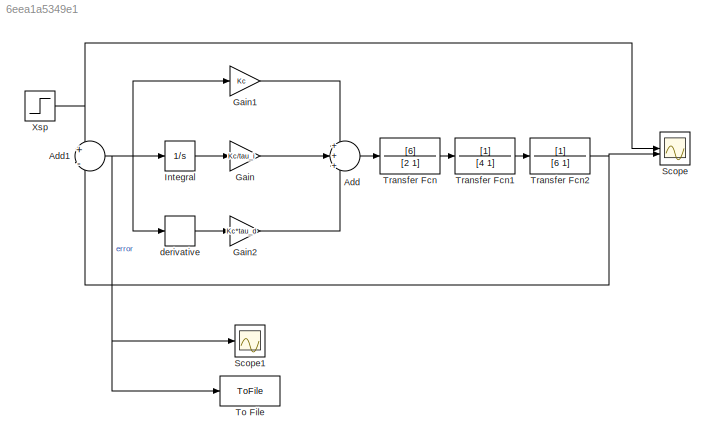
MODEL slx_6eea1a5349e1
KIND model
CONFIG AbsTol = auto
CONFIG EnableMultiTasking = off
CONFIG FixedStep = auto
CONFIG MaxStep = auto
CONFIG MinStep = auto
CONFIG RelTol = 1e-3
CONFIG SampleTimeConstraint = Unconstrained
CONFIG SolverName = VariableStepAuto
CONFIG StartTime = 0.0
CONFIG StopTime = 10.0
BLOCK [Sum] Add
  Inputs = +++
BLOCK [Sum] Add1
  Inputs = +-
BLOCK [Gain] Gain
  Gain = Kc/tau_i
BLOCK [Gain] Gain1
  Gain = Kc
BLOCK [Gain] Gain2
  Gain = Kc*tau_d
BLOCK [Integrator] Integral
BLOCK [Scope] Scope
  Floating = off
  NumInputPorts = 2
  ScopeSpecificationString = Simulink.scopes.TimeScopeBlockCfg('CurrentConfiguration', extmgr.ConfigurationSet(extmgr.Configuration('Core','General UI',true),extmgr.Configuration('Core','Source UI',true),extmgr.Configuration('Sources','WiredSimulink',true),extmgr.Configuration('Visuals','Time Domain',true,'SerializedDisplays',{struct('MinYLimReal','-0.13187','MaxYLimReal','1.1868','YLabelReal','','MinYLimMag','0.00000','MaxYL...<+1388ch>
BLOCK [Scope] Scope1
  Floating = off
  NumInputPorts = 1
  ScopeSpecificationString = Simulink.scopes.TimeScopeBlockCfg('CurrentConfiguration', extmgr.ConfigurationSet(extmgr.Configuration('Core','General UI',true),extmgr.Configuration('Core','Source UI',true),extmgr.Configuration('Sources','WiredSimulink',true,'DataLoggingVariableName','ScopeData1'),extmgr.Configuration('Visuals','Time Domain',true,'SerializedDisplays',{struct('MinYLimReal','-0.1868','MaxYLimReal','1.13187','YLabe...<+1388ch>
BLOCK [ToFile] To File
  Filename = error.mat
  MatrixName = e
  SampleTime = 0.1
BLOCK [TransferFcn] Transfer Fcn
  Denominator = [2 1]
  Numerator = [6]
BLOCK [TransferFcn] Transfer Fcn1
  Denominator = [4 1]
BLOCK [TransferFcn] Transfer Fcn2
  Denominator = [6 1]
BLOCK [Step] Xsp
  SampleTime = 0.1
  Time = 0
BLOCK [Derivative] derivative
NET Add1:1 -> Gain1:1, Integral:1, Scope1:1, To File:1, derivative:1
LINE Add:1 -> Transfer Fcn:1
LINE Gain1:1 -> Add:1
LINE Gain2:1 -> Add:3
LINE Gain:1 -> Add:2
LINE Integral:1 -> Gain:1
LINE Transfer Fcn1:1 -> Transfer Fcn2:1
NET Transfer Fcn2:1 -> Add1:2, Scope:2
LINE Transfer Fcn:1 -> Transfer Fcn1:1
NET Xsp:1 -> Add1:1, Scope:1
LINE derivative:1 -> Gain2:1
note: NET lines group one-source signal fan-out (src -> all destinations, sorted); 1:1 wires keep LINE
